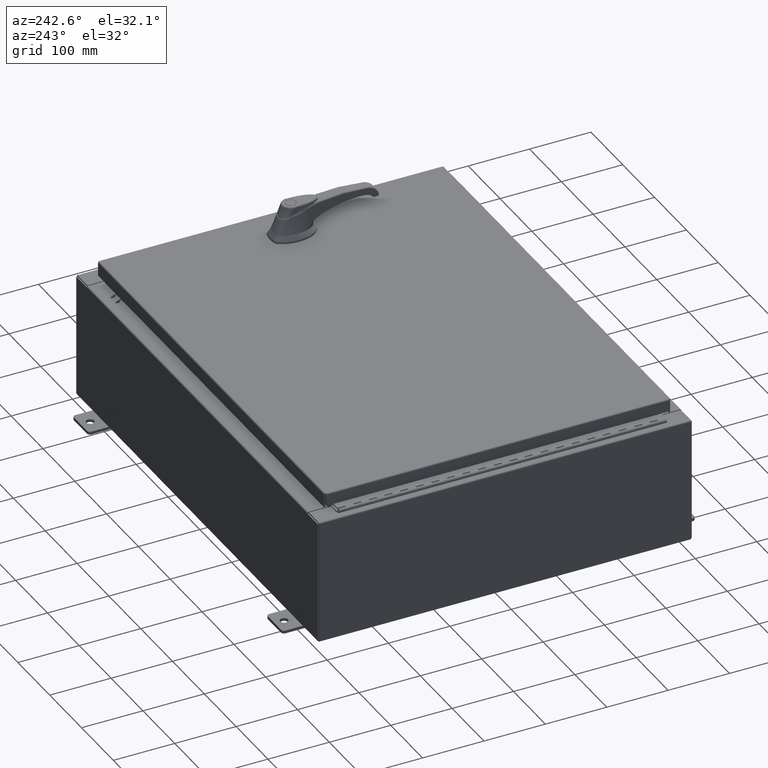
[diagram: clean part render]
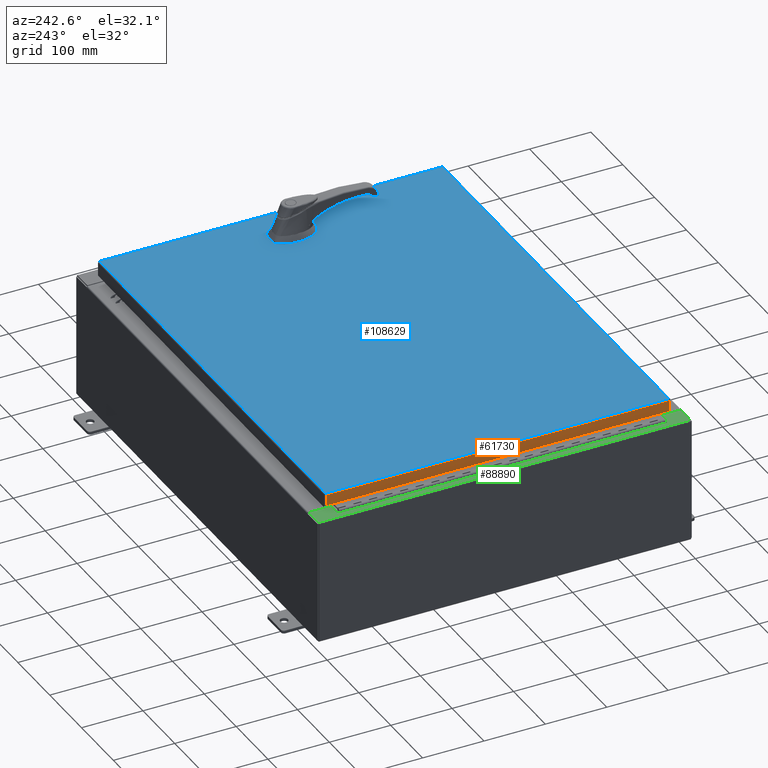
[diagram: same view with three faces highlighted in distinct colors, each labeled with its STEP entity id]
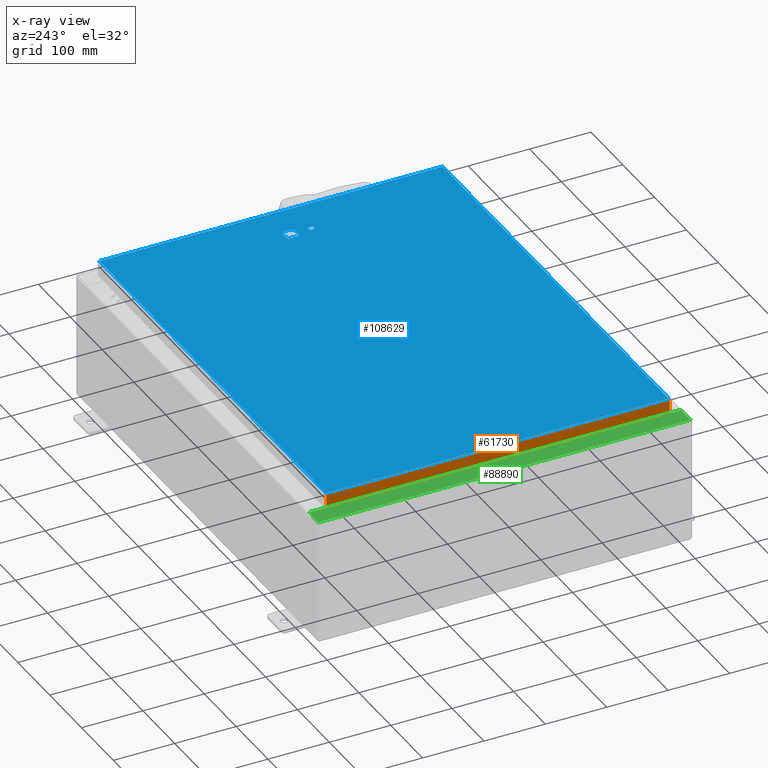
[diagram: x-ray of the same camera — body ghosted, the three highlighted faces saturated]
A machine part, auxiliary view with three faces highlighted in distinct colors.
The next image is the same camera in x-ray (body ghosted, the three faces saturated) — at least one of them is partly hidden behind the body in this view.
Their STEP definitions:

[orange] entity #61730 — the highlighted planar face has unit normal (1, 0, -0).
#5346 = VERTEX_POINT ( 'NONE', #64415 ) ;
#10321 = ORIENTED_EDGE ( 'NONE', *, *, #98326, .F. ) ;
#12062 = AXIS2_PLACEMENT_3D ( 'NONE', #43077, #112383, #60485 ) ;
#16421 = LINE ( 'NONE', #51740, #97723 ) ;
#20180 = LINE ( 'NONE', #81328, #86607 ) ;
#22407 = DIRECTION ( 'NONE',  ( 4.379057701015054300E-047, 1.000000000000000000, 1.231227687788112300E-016 ) ) ;
#32388 = EDGE_CURVE ( 'NONE', #5346, #92108, #57264, .T. ) ;
#36660 = VERTEX_POINT ( 'NONE', #43364 ) ;
#38143 = DIRECTION ( 'NONE',  ( 3.735695558659274900E-031, -1.000000000000000000, -1.101212895818006000E-045 ) ) ;
#38775 = EDGE_CURVE ( 'NONE', #53562, #36660, #20180, .T. ) ;
#39650 = EDGE_LOOP ( 'NONE', ( #56332, #42238, #92350, #10321 ) ) ;
#39698 = CARTESIAN_POINT ( 'NONE',  ( -14.07799999999999800, -11.00515786437627100, -0.07469999999999976700 ) ) ;
#39931 = VECTOR ( 'NONE', #108975, 39.37007874015748100 ) ;
#42238 = ORIENTED_EDGE ( 'NONE', *, *, #69341, .T. ) ;
#43077 = CARTESIAN_POINT ( 'NONE',  ( -14.07799999999999800, -5.259112207480525900E-030, 4.297518939368254200E-014 ) ) ;
#43364 = CARTESIAN_POINT ( 'NONE',  ( -14.07799999999999800, -11.00515786437626900, -0.08770000000000007000 ) ) ;
#51740 = CARTESIAN_POINT ( 'NONE',  ( -14.07799999999999800, 11.00515786437626700, 1.198237960226675300E-013 ) ) ;
#53562 = VERTEX_POINT ( 'NONE', #63941 ) ;
#56332 = ORIENTED_EDGE ( 'NONE', *, *, #38775, .F. ) ;
#57264 = LINE ( 'NONE', #74363, #100612 ) ;
#58244 = CARTESIAN_POINT ( 'NONE',  ( -14.07799999999999900, 11.00515786437627100, -0.7949999999999969300 ) ) ;
#60441 = DIRECTION ( 'NONE',  ( -3.034122441942816500E-015, 6.982962677686265900E-015, -1.000000000000000000 ) ) ;
#60485 = DIRECTION ( 'NONE',  ( -3.034122441942816500E-015, 0.0000000000000000000, -1.000000000000000000 ) ) ;
#61730 = ADVANCED_FACE ( 'NONE', ( #64561 ), #94179, .F. ) ;
#63941 = CARTESIAN_POINT ( 'NONE',  ( -14.07799999999999800, 11.00515786437626900, -0.08770000000000004200 ) ) ;
#64415 = CARTESIAN_POINT ( 'NONE',  ( -14.07799999999999900, -11.00515786437626700, -0.7949999999999996000 ) ) ;
#64561 = FACE_OUTER_BOUND ( 'NONE', #39650, .T. ) ;
#69341 = EDGE_CURVE ( 'NONE', #53562, #92108, #16421, .T. ) ;
#74363 = CARTESIAN_POINT ( 'NONE',  ( -14.07799999999999900, -11.09400000000000100, -0.7949999999999997100 ) ) ;
#81328 = CARTESIAN_POINT ( 'NONE',  ( -14.07799999999999800, -11.09400000000000100, -0.08770000000000004200 ) ) ;
#86607 = VECTOR ( 'NONE', #38143, 39.37007874015748100 ) ;
#92108 = VERTEX_POINT ( 'NONE', #58244 ) ;
#92350 = ORIENTED_EDGE ( 'NONE', *, *, #32388, .F. ) ;
#94179 = PLANE ( 'NONE',  #12062 ) ;
#97723 = VECTOR ( 'NONE', #60441, 39.37007874015748100 ) ;
#98326 = EDGE_CURVE ( 'NONE', #36660, #5346, #106349, .T. ) ;
#100612 = VECTOR ( 'NONE', #22407, 39.37007874015748100 ) ;
#106349 = LINE ( 'NONE', #39698, #39931 ) ;
#108975 = DIRECTION ( 'NONE',  ( -3.034122441942816500E-015, 6.982962677686265900E-015, -1.000000000000000000 ) ) ;
#112383 = DIRECTION ( 'NONE',  ( 1.000000000000000000, 3.735695558659274400E-031, -3.034122441942816500E-015 ) ) ;

[blue] entity #108629 — the highlighted planar face has unit normal (0, 0, -1).
#566 = CARTESIAN_POINT ( 'NONE',  ( 11.17500000000007500, 0.0000000000000000000, 0.0000000000000000000 ) ) ;
#3656 = VECTOR ( 'NONE', #8316, 39.37007874015748100 ) ;
#6065 = DIRECTION ( 'NONE',  ( 1.000000000000000000, 0.0000000000000000000, 0.0000000000000000000 ) ) ;
#6745 = EDGE_CURVE ( 'NONE', #11570, #20445, #56444, .T. ) ;
#8316 = DIRECTION ( 'NONE',  ( 1.000000000000000000, -0.0000000000000000000, -0.0000000000000000000 ) ) ;
#8450 = CIRCLE ( 'NONE', #41547, 0.4499999999999168000 ) ;
#8550 = EDGE_CURVE ( 'NONE', #25305, #106538, #68447, .T. ) ;
#8669 = DIRECTION ( 'NONE',  ( -0.0000000000000000000, 0.0000000000000000000, 1.000000000000000000 ) ) ;
#8753 = VECTOR ( 'NONE', #79855, 39.37007874015748100 ) ;
#9694 = DIRECTION ( 'NONE',  ( 0.0000000000000000000, -1.000000000000000000, 0.0000000000000000000 ) ) ;
#10083 = EDGE_CURVE ( 'NONE', #46945, #11570, #27531, .T. ) ;
#10379 = CARTESIAN_POINT ( 'NONE',  ( 13.99030000000000100, 11.00630000000000000, -1.297627796990525000E-015 ) ) ;
#11382 = EDGE_CURVE ( 'NONE', #16107, #25305, #8450, .T. ) ;
#11547 = AXIS2_PLACEMENT_3D ( 'NONE', #98371, #46503, #107079 ) ;
#11570 = VERTEX_POINT ( 'NONE', #42072 ) ;
#11919 = CIRCLE ( 'NONE', #63996, 0.4499999999999168000 ) ;
#11933 = VECTOR ( 'NONE', #9694, 39.37007874015748100 ) ;
#12010 = VECTOR ( 'NONE', #63420, 39.37007874015748100 ) ;
#14037 = DIRECTION ( 'NONE',  ( -1.000000000000000000, 0.0000000000000000000, 0.0000000000000000000 ) ) ;
#15425 = ORIENTED_EDGE ( 'NONE', *, *, #53008, .T. ) ;
#15598 = VERTEX_POINT ( 'NONE', #51810 ) ;
#16107 = VERTEX_POINT ( 'NONE', #78617 ) ;
#16174 = EDGE_CURVE ( 'NONE', #21350, #16107, #57977, .T. ) ;
#16985 = CARTESIAN_POINT ( 'NONE',  ( -13.99029999999999200, -11.00630000000000100, -1.348849946871729900E-015 ) ) ;
#17572 = AXIS2_PLACEMENT_3D ( 'NONE', #62534, #28005, #88650 ) ;
#19244 = CARTESIAN_POINT ( 'NONE',  ( 11.98099999999992900, 6.538620706741755000E-014, 0.0000000000000000000 ) ) ;
#20445 = VERTEX_POINT ( 'NONE', #82529 ) ;
#21231 = CARTESIAN_POINT ( 'NONE',  ( -13.99029999999999800, 11.00630000000000100, -2.048885995248197400E-016 ) ) ;
#21350 = VERTEX_POINT ( 'NONE', #40663 ) ;
#21495 = CARTESIAN_POINT ( 'NONE',  ( 11.57800000000000100, 0.0000000000000000000, 0.0000000000000000000 ) ) ;
#22559 = DIRECTION ( 'NONE',  ( -0.0000000000000000000, 0.0000000000000000000, 1.000000000000000000 ) ) ;
#22677 = ORIENTED_EDGE ( 'NONE', *, *, #35786, .F. ) ;
#22783 = CARTESIAN_POINT ( 'NONE',  ( -13.99029999999999600, -11.00630000000000100, -1.340312921891529000E-015 ) ) ;
#24219 = ORIENTED_EDGE ( 'NONE', *, *, #10083, .F. ) ;
#24402 = ORIENTED_EDGE ( 'NONE', *, *, #11382, .F. ) ;
#25305 = VERTEX_POINT ( 'NONE', #107350 ) ;
#27531 = CIRCLE ( 'NONE', #65471, 0.4499999999999168000 ) ;
#28005 = DIRECTION ( 'NONE',  ( 0.0000000000000000000, 0.0000000000000000000, -1.000000000000000000 ) ) ;
#29075 = AXIS2_PLACEMENT_3D ( 'NONE', #21495, #82123, #30167 ) ;
#30167 = DIRECTION ( 'NONE',  ( 1.000000000000000000, 0.0000000000000000000, 0.0000000000000000000 ) ) ;
#30489 = LINE ( 'NONE', #10379, #48117 ) ;
#31236 = VERTEX_POINT ( 'NONE', #57534 ) ;
#33390 = VECTOR ( 'NONE', #14037, 39.37007874015748100 ) ;
#33598 = CARTESIAN_POINT ( 'NONE',  ( 11.57800000000000100, -1.338000000000000100, 0.0000000000000000000 ) ) ;
#35040 = LINE ( 'NONE', #71790, #12010 ) ;
#35660 = ORIENTED_EDGE ( 'NONE', *, *, #87727, .T. ) ;
#35786 = EDGE_CURVE ( 'NONE', #111950, #38496, #67784, .T. ) ;
#37462 = EDGE_CURVE ( 'NONE', #50120, #15598, #35040, .T. ) ;
#38496 = VERTEX_POINT ( 'NONE', #104036 ) ;
#38679 = DIRECTION ( 'NONE',  ( 0.0000000000000000000, -1.000000000000000000, 0.0000000000000000000 ) ) ;
#39721 = EDGE_CURVE ( 'NONE', #106538, #86025, #43123, .T. ) ;
#39785 = EDGE_CURVE ( 'NONE', #20445, #21350, #11919, .T. ) ;
#40663 = CARTESIAN_POINT ( 'NONE',  ( 11.17500000000007500, 0.2002273707563079800, 0.0000000000000000000 ) ) ;
#41529 = VERTEX_POINT ( 'NONE', #22783 ) ;
#41547 = AXIS2_PLACEMENT_3D ( 'NONE', #109842, #57946, #6065 ) ;
#42072 = CARTESIAN_POINT ( 'NONE',  ( 11.77822737075631200, 0.4029999999999252000, 0.0000000000000000000 ) ) ;
#42338 = DIRECTION ( 'NONE',  ( 1.000000000000000000, 0.0000000000000000000, 0.0000000000000000000 ) ) ;
#43123 = CIRCLE ( 'NONE', #29075, 0.4499999999999168000 ) ;
#43462 = FACE_BOUND ( 'NONE', #62153, .T. ) ;
#44125 = VECTOR ( 'NONE', #38679, 39.37007874015748100 ) ;
#45387 = VECTOR ( 'NONE', #77873, 39.37007874015748100 ) ;
#46503 = DIRECTION ( 'NONE',  ( -0.0000000000000000000, 0.0000000000000000000, 1.000000000000000000 ) ) ;
#46834 = LINE ( 'NONE', #21231, #44125 ) ;
#46945 = VERTEX_POINT ( 'NONE', #49521 ) ;
#47068 = ORIENTED_EDGE ( 'NONE', *, *, #64330, .T. ) ;
#48117 = VECTOR ( 'NONE', #79700, 39.37007874015748100 ) ;
#49521 = CARTESIAN_POINT ( 'NONE',  ( 11.98099999999992900, 0.2002273707563075900, 0.0000000000000000000 ) ) ;
#50120 = VERTEX_POINT ( 'NONE', #61635 ) ;
#51810 = CARTESIAN_POINT ( 'NONE',  ( 13.99030000000000100, 11.00630000000000000, -1.297627796990525000E-015 ) ) ;
#53008 = EDGE_CURVE ( 'NONE', #31236, #41529, #46834, .T. ) ;
#54515 = EDGE_CURVE ( 'NONE', #38496, #111950, #108949, .T. ) ;
#55219 = ORIENTED_EDGE ( 'NONE', *, *, #54515, .F. ) ;
#56444 = LINE ( 'NONE', #57228, #33390 ) ;
#57228 = CARTESIAN_POINT ( 'NONE',  ( 0.0000000000000000000, 0.4029999999999252000, 0.0000000000000000000 ) ) ;
#57534 = CARTESIAN_POINT ( 'NONE',  ( -13.99029999999999800, 11.00630000000000100, -2.048885995248197400E-016 ) ) ;
#57946 = DIRECTION ( 'NONE',  ( -0.0000000000000000000, 0.0000000000000000000, 1.000000000000000000 ) ) ;
#57977 = LINE ( 'NONE', #566, #11933 ) ;
#60563 = CARTESIAN_POINT ( 'NONE',  ( 11.57800000000000100, 0.0000000000000000000, 0.0000000000000000000 ) ) ;
#61635 = CARTESIAN_POINT ( 'NONE',  ( 13.99030000000000100, -11.00630000000000000, -2.048885995248197400E-016 ) ) ;
#62153 = EDGE_LOOP ( 'NONE', ( #55219, #22677 ) ) ;
#62534 = CARTESIAN_POINT ( 'NONE',  ( 0.0000000000000000000, 0.0000000000000000000, 0.0000000000000000000 ) ) ;
#63420 = DIRECTION ( 'NONE',  ( 0.0000000000000000000, 1.000000000000000000, 0.0000000000000000000 ) ) ;
#63996 = AXIS2_PLACEMENT_3D ( 'NONE', #74520, #22559, #83206 ) ;
#64330 = EDGE_CURVE ( 'NONE', #15598, #31236, #30489, .T. ) ;
#64608 = ORIENTED_EDGE ( 'NONE', *, *, #6745, .F. ) ;
#65471 = AXIS2_PLACEMENT_3D ( 'NONE', #60563, #8669, #69320 ) ;
#66485 = FACE_OUTER_BOUND ( 'NONE', #96132, .T. ) ;
#67784 = CIRCLE ( 'NONE', #11547, 0.1715000000000011500 ) ;
#68447 = LINE ( 'NONE', #103579, #45387 ) ;
#69320 = DIRECTION ( 'NONE',  ( 1.000000000000000000, 0.0000000000000000000, 0.0000000000000000000 ) ) ;
#71790 = CARTESIAN_POINT ( 'NONE',  ( 13.99030000000000100, -11.00630000000000000, -2.048885995248197400E-016 ) ) ;
#72540 = EDGE_LOOP ( 'NONE', ( #96078, #72972, #81965, #24402, #82087, #81568, #64608, #24219 ) ) ;
#72819 = LINE ( 'NONE', #16985, #3656 ) ;
#72972 = ORIENTED_EDGE ( 'NONE', *, *, #39721, .F. ) ;
#73823 = EDGE_CURVE ( 'NONE', #46945, #86025, #100835, .T. ) ;
#74283 = CARTESIAN_POINT ( 'NONE',  ( 11.98099999999993100, -0.2002273707563079800, 0.0000000000000000000 ) ) ;
#74520 = CARTESIAN_POINT ( 'NONE',  ( 11.57800000000000100, 0.0000000000000000000, 0.0000000000000000000 ) ) ;
#75849 = CARTESIAN_POINT ( 'NONE',  ( 11.77822737075631200, -0.4029999999999252000, 0.0000000000000000000 ) ) ;
#77873 = DIRECTION ( 'NONE',  ( 1.000000000000000000, 0.0000000000000000000, 0.0000000000000000000 ) ) ;
#78617 = CARTESIAN_POINT ( 'NONE',  ( 11.17500000000007500, -0.2002273707563079800, 0.0000000000000000000 ) ) ;
#78944 = ORIENTED_EDGE ( 'NONE', *, *, #37462, .T. ) ;
#79700 = DIRECTION ( 'NONE',  ( -1.000000000000000000, -0.0000000000000000000, -0.0000000000000000000 ) ) ;
#79855 = DIRECTION ( 'NONE',  ( 5.457491617345625800E-015, -1.000000000000000000, 0.0000000000000000000 ) ) ;
#79949 = PLANE ( 'NONE',  #17572 ) ;
#80005 = CARTESIAN_POINT ( 'NONE',  ( 11.40650000000000100, -1.338000000000000100, 0.0000000000000000000 ) ) ;
#81568 = ORIENTED_EDGE ( 'NONE', *, *, #39785, .F. ) ;
#81965 = ORIENTED_EDGE ( 'NONE', *, *, #8550, .F. ) ;
#82087 = ORIENTED_EDGE ( 'NONE', *, *, #16174, .F. ) ;
#82123 = DIRECTION ( 'NONE',  ( -0.0000000000000000000, 0.0000000000000000000, 1.000000000000000000 ) ) ;
#82529 = CARTESIAN_POINT ( 'NONE',  ( 11.37777262924369200, 0.4029999999999252000, 0.0000000000000000000 ) ) ;
#83206 = DIRECTION ( 'NONE',  ( 1.000000000000000000, 0.0000000000000000000, 0.0000000000000000000 ) ) ;
#86025 = VERTEX_POINT ( 'NONE', #74283 ) ;
#87727 = EDGE_CURVE ( 'NONE', #41529, #50120, #72819, .T. ) ;
#88650 = DIRECTION ( 'NONE',  ( -1.000000000000000000, 0.0000000000000000000, -0.0000000000000000000 ) ) ;
#89414 = AXIS2_PLACEMENT_3D ( 'NONE', #33598, #94182, #42338 ) ;
#89553 = FACE_BOUND ( 'NONE', #72540, .T. ) ;
#94182 = DIRECTION ( 'NONE',  ( -0.0000000000000000000, 0.0000000000000000000, 1.000000000000000000 ) ) ;
#96078 = ORIENTED_EDGE ( 'NONE', *, *, #73823, .T. ) ;
#96132 = EDGE_LOOP ( 'NONE', ( #35660, #78944, #47068, #15425 ) ) ;
#98371 = CARTESIAN_POINT ( 'NONE',  ( 11.57800000000000100, -1.338000000000000100, 0.0000000000000000000 ) ) ;
#100835 = LINE ( 'NONE', #19244, #8753 ) ;
#103579 = CARTESIAN_POINT ( 'NONE',  ( 0.0000000000000000000, -0.4029999999999252000, 0.0000000000000000000 ) ) ;
#104036 = CARTESIAN_POINT ( 'NONE',  ( 11.74950000000000300, -1.338000000000000100, 0.0000000000000000000 ) ) ;
#106538 = VERTEX_POINT ( 'NONE', #75849 ) ;
#107079 = DIRECTION ( 'NONE',  ( 1.000000000000000000, 0.0000000000000000000, 0.0000000000000000000 ) ) ;
#107350 = CARTESIAN_POINT ( 'NONE',  ( 11.37777262924369200, -0.4029999999999252000, 0.0000000000000000000 ) ) ;
#108629 = ADVANCED_FACE ( 'NONE', ( #43462, #66485, #89553 ), #79949, .F. ) ;
#108949 = CIRCLE ( 'NONE', #89414, 0.1715000000000011500 ) ;
#109842 = CARTESIAN_POINT ( 'NONE',  ( 11.57800000000000100, 0.0000000000000000000, 0.0000000000000000000 ) ) ;
#111950 = VERTEX_POINT ( 'NONE', #80005 ) ;

[green] entity #88890 — the highlighted planar face has unit normal (0, 0, -1).
#2348 = CARTESIAN_POINT ( 'NONE',  ( -5.679009539018309800E-014, 0.0000000000000000000, 7.925300000000105700 ) ) ;
#3994 = LINE ( 'NONE', #94633, #50028 ) ;
#7676 = DIRECTION ( 'NONE',  ( -1.000000000000000000, 0.0000000000000000000, -7.132762385546384700E-015 ) ) ;
#7937 = DIRECTION ( 'NONE',  ( 1.000000000000000000, 0.0000000000000000000, 0.0000000000000000000 ) ) ;
#8810 = CARTESIAN_POINT ( 'NONE',  ( -13.75005000000002800, -10.63109999999999600, 7.925300000000008900 ) ) ;
#8911 = CARTESIAN_POINT ( 'NONE',  ( -13.69970000000003000, 0.0000000000000000000, 7.925300000000008900 ) ) ;
#9227 = LINE ( 'NONE', #66104, #24041 ) ;
#11624 = ORIENTED_EDGE ( 'NONE', *, *, #13837, .F. ) ;
#12003 = DIRECTION ( 'NONE',  ( -0.0000000000000000000, -1.000000000000000000, -0.0000000000000000000 ) ) ;
#13058 = CARTESIAN_POINT ( 'NONE',  ( -13.69970000000003000, -10.63109999999999800, 7.925300000000008900 ) ) ;
#13837 = EDGE_CURVE ( 'NONE', #98148, #33696, #21681, .T. ) ;
#14609 = LINE ( 'NONE', #8810, #104052 ) ;
#15706 = FACE_OUTER_BOUND ( 'NONE', #101785, .T. ) ;
#17093 = VERTEX_POINT ( 'NONE', #109780 ) ;
#18428 = ORIENTED_EDGE ( 'NONE', *, *, #75577, .F. ) ;
#18554 = LINE ( 'NONE', #8911, #90403 ) ;
#19122 = VECTOR ( 'NONE', #106028, 39.37007874015748100 ) ;
#19757 = DIRECTION ( 'NONE',  ( -1.000000000000000000, 0.0000000000000000000, -7.132762385546384700E-015 ) ) ;
#21681 = CIRCLE ( 'NONE', #59803, 0.01867499999999949400 ) ;
#21701 = CARTESIAN_POINT ( 'NONE',  ( -13.71270000000003000, -10.59374999999999800, 7.925300000000008900 ) ) ;
#23683 = LINE ( 'NONE', #24664, #90171 ) ;
#23796 = CARTESIAN_POINT ( 'NONE',  ( -13.69970000000003000, 10.63109999999999600, 7.925300000000008900 ) ) ;
#24041 = VECTOR ( 'NONE', #74802, 39.37007874015748100 ) ;
#24370 = EDGE_CURVE ( 'NONE', #52683, #102540, #3994, .T. ) ;
#24595 = VECTOR ( 'NONE', #12003, 39.37007874015748100 ) ;
#24664 = CARTESIAN_POINT ( 'NONE',  ( -5.679009539018309800E-014, 11.92529999999999800, 7.925300000000105700 ) ) ;
#25856 = EDGE_CURVE ( 'NONE', #56170, #102540, #14609, .T. ) ;
#26110 = EDGE_CURVE ( 'NONE', #36030, #52683, #9227, .T. ) ;
#26989 = CARTESIAN_POINT ( 'NONE',  ( -13.71270000000003000, 10.59374999999999800, 7.925300000000008900 ) ) ;
#27696 = ORIENTED_EDGE ( 'NONE', *, *, #41038, .T. ) ;
#27909 = ORIENTED_EDGE ( 'NONE', *, *, #73136, .T. ) ;
#28093 = LINE ( 'NONE', #23796, #30775 ) ;
#30775 = VECTOR ( 'NONE', #75750, 39.37007874015748100 ) ;
#32363 = EDGE_CURVE ( 'NONE', #17093, #102342, #60017, .T. ) ;
#33696 = VERTEX_POINT ( 'NONE', #79881 ) ;
#34254 = VECTOR ( 'NONE', #73989, 39.37007874015748100 ) ;
#36030 = VERTEX_POINT ( 'NONE', #58528 ) ;
#36733 = CARTESIAN_POINT ( 'NONE',  ( -13.75005000000002800, -10.61242499999999800, 7.925300000000008900 ) ) ;
#37551 = ORIENTED_EDGE ( 'NONE', *, *, #26110, .T. ) ;
#38097 = AXIS2_PLACEMENT_3D ( 'NONE', #36733, #97325, #45443 ) ;
#41038 = EDGE_CURVE ( 'NONE', #92663, #59966, #18554, .T. ) ;
#42762 = DIRECTION ( 'NONE',  ( 0.0000000000000000000, 1.000000000000000000, 0.0000000000000000000 ) ) ;
#45068 = DIRECTION ( 'NONE',  ( 1.000000000000000000, 0.0000000000000000000, 0.0000000000000000000 ) ) ;
#45443 = DIRECTION ( 'NONE',  ( 1.000000000000000000, 0.0000000000000000000, 0.0000000000000000000 ) ) ;
#46546 = EDGE_CURVE ( 'NONE', #36030, #104971, #65218, .T. ) ;
#47326 = CARTESIAN_POINT ( 'NONE',  ( -13.75005000000002800, -10.63109999999999600, 7.925300000000007100 ) ) ;
#47669 = LINE ( 'NONE', #80568, #24595 ) ;
#50028 = VECTOR ( 'NONE', #42762, 39.37007874015748100 ) ;
#52683 = VERTEX_POINT ( 'NONE', #53095 ) ;
#52790 = CARTESIAN_POINT ( 'NONE',  ( -13.69970000000003000, 11.92529999999999800, 7.925300000000008900 ) ) ;
#53095 = CARTESIAN_POINT ( 'NONE',  ( -13.69970000000003000, -11.92530000000000000, 7.925300000000008900 ) ) ;
#56170 = VERTEX_POINT ( 'NONE', #47326 ) ;
#58528 = CARTESIAN_POINT ( 'NONE',  ( -14.91230000000002900, -11.92530000000000000, 7.925300000000000000 ) ) ;
#59795 = DIRECTION ( 'NONE',  ( -7.132762385546384700E-015, -0.0000000000000000000, 1.000000000000000000 ) ) ;
#59803 = AXIS2_PLACEMENT_3D ( 'NONE', #111658, #59795, #7937 ) ;
#59966 = VERTEX_POINT ( 'NONE', #52790 ) ;
#60017 = LINE ( 'NONE', #21701, #34254 ) ;
#62384 = AXIS2_PLACEMENT_3D ( 'NONE', #2348, #71709, #19757 ) ;
#62939 = PLANE ( 'NONE',  #62384 ) ;
#63498 = CARTESIAN_POINT ( 'NONE',  ( -13.75005000000002800, -10.59374999999999800, 7.925300000000007100 ) ) ;
#65218 = LINE ( 'NONE', #71637, #19122 ) ;
#66104 = CARTESIAN_POINT ( 'NONE',  ( -5.679009539018309800E-014, -11.92530000000000000, 7.925300000000105700 ) ) ;
#69538 = DIRECTION ( 'NONE',  ( 0.0000000000000000000, 1.000000000000000000, 0.0000000000000000000 ) ) ;
#69543 = CARTESIAN_POINT ( 'NONE',  ( -13.69970000000003000, 10.63109999999999600, 7.925300000000008900 ) ) ;
#71637 = CARTESIAN_POINT ( 'NONE',  ( -14.91230000000002900, 11.92529999999999800, 7.925300000000000000 ) ) ;
#71709 = DIRECTION ( 'NONE',  ( 7.132762385546384700E-015, 0.0000000000000000000, -1.000000000000000000 ) ) ;
#73136 = EDGE_CURVE ( 'NONE', #59966, #104971, #23683, .T. ) ;
#73989 = DIRECTION ( 'NONE',  ( -1.000000000000000000, 0.0000000000000000000, 0.0000000000000000000 ) ) ;
#74802 = DIRECTION ( 'NONE',  ( 1.000000000000000000, -0.0000000000000000000, 7.132762385546384700E-015 ) ) ;
#75577 = EDGE_CURVE ( 'NONE', #102342, #56170, #79209, .T. ) ;
#75750 = DIRECTION ( 'NONE',  ( -1.000000000000000000, 0.0000000000000000000, 0.0000000000000000000 ) ) ;
#76646 = ORIENTED_EDGE ( 'NONE', *, *, #80404, .F. ) ;
#78209 = ORIENTED_EDGE ( 'NONE', *, *, #25856, .F. ) ;
#79209 = CIRCLE ( 'NONE', #38097, 0.01867499999999949400 ) ;
#79881 = CARTESIAN_POINT ( 'NONE',  ( -13.75005000000002800, 10.59374999999999800, 7.925300000000007100 ) ) ;
#80404 = EDGE_CURVE ( 'NONE', #33696, #96778, #90861, .T. ) ;
#80568 = CARTESIAN_POINT ( 'NONE',  ( -13.71270000000003000, 10.59374999999999800, 7.925300000000008900 ) ) ;
#80671 = CARTESIAN_POINT ( 'NONE',  ( -13.75005000000002800, 10.63109999999999600, 7.925300000000007100 ) ) ;
#81135 = ORIENTED_EDGE ( 'NONE', *, *, #24370, .T. ) ;
#83661 = ORIENTED_EDGE ( 'NONE', *, *, #32363, .F. ) ;
#84330 = CARTESIAN_POINT ( 'NONE',  ( -14.91230000000002900, 11.92529999999999800, 7.925300000000000000 ) ) ;
#87225 = DIRECTION ( 'NONE',  ( 1.000000000000000000, 0.0000000000000000000, 0.0000000000000000000 ) ) ;
#87393 = ORIENTED_EDGE ( 'NONE', *, *, #46546, .F. ) ;
#88890 = ADVANCED_FACE ( 'NONE', ( #15706 ), #62939, .F. ) ;
#90171 = VECTOR ( 'NONE', #7676, 39.37007874015748100 ) ;
#90403 = VECTOR ( 'NONE', #69538, 39.37007874015748100 ) ;
#90861 = LINE ( 'NONE', #93045, #111155 ) ;
#92035 = ORIENTED_EDGE ( 'NONE', *, *, #93643, .F. ) ;
#92663 = VERTEX_POINT ( 'NONE', #69543 ) ;
#93045 = CARTESIAN_POINT ( 'NONE',  ( -13.75005000000002800, 10.59374999999999800, 7.925300000000008900 ) ) ;
#93643 = EDGE_CURVE ( 'NONE', #96778, #17093, #47669, .T. ) ;
#94633 = CARTESIAN_POINT ( 'NONE',  ( -13.69970000000003000, 0.0000000000000000000, 7.925300000000008900 ) ) ;
#95414 = EDGE_CURVE ( 'NONE', #92663, #98148, #28093, .T. ) ;
#96778 = VERTEX_POINT ( 'NONE', #26989 ) ;
#97325 = DIRECTION ( 'NONE',  ( -7.132762385546384700E-015, -0.0000000000000000000, 1.000000000000000000 ) ) ;
#98148 = VERTEX_POINT ( 'NONE', #80671 ) ;
#101785 = EDGE_LOOP ( 'NONE', ( #112270, #27696, #27909, #87393, #37551, #81135, #78209, #18428, #83661, #92035, #76646, #11624 ) ) ;
#102342 = VERTEX_POINT ( 'NONE', #63498 ) ;
#102540 = VERTEX_POINT ( 'NONE', #13058 ) ;
#104052 = VECTOR ( 'NONE', #87225, 39.37007874015748100 ) ;
#104971 = VERTEX_POINT ( 'NONE', #84330 ) ;
#106028 = DIRECTION ( 'NONE',  ( -0.0000000000000000000, 1.000000000000000000, -0.0000000000000000000 ) ) ;
#109780 = CARTESIAN_POINT ( 'NONE',  ( -13.71270000000003000, -10.59374999999999800, 7.925300000000008900 ) ) ;
#111155 = VECTOR ( 'NONE', #45068, 39.37007874015748100 ) ;
#111658 = CARTESIAN_POINT ( 'NONE',  ( -13.75005000000002800, 10.61242499999999800, 7.925300000000008900 ) ) ;
#112270 = ORIENTED_EDGE ( 'NONE', *, *, #95414, .F. ) ;